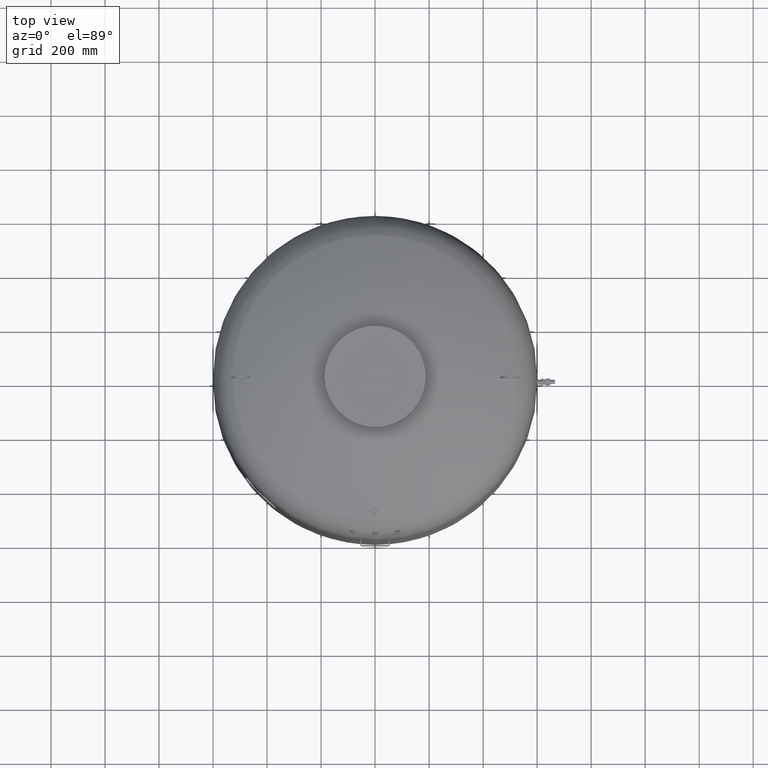
[diagram: clean part render]
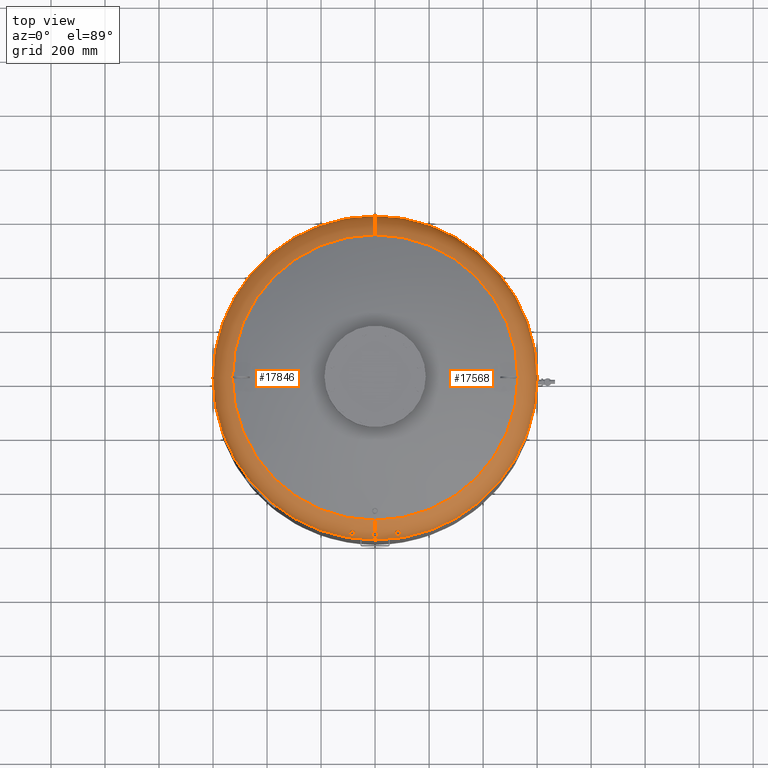
[diagram: same view with one multi-face feature highlighted, each face labeled with its STEP entity id]
A machine part, top view. The highlighted faces form ONE feature: a constant-radius fillet chain: 2 tangent blend faces with common blend radius 127 mm. The faces share edges in the B-rep.
Their STEP definitions:
[1] entity #17846 (Torus):
#16733=CARTESIAN_POINT('',(4.070251E-014,-581.392206755248030,1800.095004337934600));
#16734=VERTEX_POINT('',#16733);
#16750=CARTESIAN_POINT('',(-4.708126E-014,-570.568565249419520,1815.210520603582800));
#16751=VERTEX_POINT('',#16750);
#16758=CARTESIAN_POINT('',(-4.708126E-014,-570.568565249419520,1815.210520603582800));
#16759=CARTESIAN_POINT('',(-1.226193800664040,-570.568565249419630,1815.210520603582800));
#16760=CARTESIAN_POINT('',(-2.440224030761931,-570.722838559517300,1815.021484041693600));
#16761=CARTESIAN_POINT('',(-4.696456483105028,-571.315280350829650,1814.285048031583300));
#16762=CARTESIAN_POINT('',(-5.717181468956783,-571.745930145486910,1813.746562818159000));
#16763=CARTESIAN_POINT('',(-7.348889016405016,-572.763682954573820,1812.446045641367200));
#16764=CARTESIAN_POINT('',(-7.976675843730992,-573.322944622357000,1811.721335507953000));
#16765=CARTESIAN_POINT('',(-8.788540489889847,-574.407826373429540,1810.283103634066300));
#16766=CARTESIAN_POINT('',(-9.033208350713638,-574.910944905941960,1809.605550719006500));
#16767=CARTESIAN_POINT('',(-9.269818253449543,-575.888514548996680,1808.264529096906200));
#16768=CARTESIAN_POINT('',(-9.280056342089647,-576.357732046934190,1807.610257329848300));
#16769=CARTESIAN_POINT('',(-9.085015355485178,-577.325963303350250,1806.237796083592200));
#16770=CARTESIAN_POINT('',(-8.857138817766971,-577.817865573910240,1805.527183592973900));
#16771=CARTESIAN_POINT('',(-8.057446139469484,-578.883475300601960,1803.962418464691200));
#16772=CARTESIAN_POINT('',(-7.407129945179072,-579.426203893210870,1803.145369939497000));
#16773=CARTESIAN_POINT('',(-5.796804700803868,-580.331244134660890,1801.762058210871600));
#16774=CARTESIAN_POINT('',(-4.856513747498868,-580.689946795549870,1801.202311935192900));
#16775=CARTESIAN_POINT('',(-2.759733933541183,-581.206397681135970,1800.391020618060100));
#16776=CARTESIAN_POINT('',(-1.618787187096637,-581.355242397138110,1800.153749112597300));
#16777=CARTESIAN_POINT('',(-0.303381406680882,-581.390196523329790,1800.098199779960900));
#16778=CARTESIAN_POINT('',(-0.151615306289402,-581.392206755248030,1800.095004337934600));
#16779=CARTESIAN_POINT('',(4.070251E-014,-581.392206755248030,1800.095004337934600));
#16780=B_SPLINE_CURVE_WITH_KNOTS('',3,(#16758,#16759,#16760,#16761,#16762,#16763,#16764,#16765,#16766,#16767,#16768,#16769,#16770,#16771,#16772,#16773,#16774,#16775,#16776,#16777,#16778,#16779),.UNSPECIFIED.,.F.,.U.,(4,2,2,2,2,2,2,2,2,2,4),(0.0,3.678581401991979,7.338673258340574,10.643148583621077,13.266211746194269,15.671456589480382,18.338297693247561,21.836157815532140,25.261480459045892,28.756986273979081,29.212938941391993),.UNSPECIFIED.);
#16781=EDGE_CURVE('',#16751,#16734,#16780,.T.);
#17190=CARTESIAN_POINT('',(-80.223172074027190,-575.056327373477760,1801.335244714457500));
#17191=VERTEX_POINT('',#17190);
#17207=CARTESIAN_POINT('',(-85.359990616421925,-564.012452827669340,1815.370250013728100));
#17208=VERTEX_POINT('',#17207);
#17215=CARTESIAN_POINT('',(-85.359990616421925,-564.012452827669340,1815.370250013728100));
#17216=CARTESIAN_POINT('',(-86.467509442209220,-564.117005555310020,1815.048361976583900));
#17217=CARTESIAN_POINT('',(-87.506731109483638,-564.357977141732360,1814.570802959271800));
#17218=CARTESIAN_POINT('',(-89.321282473322213,-565.072107131402390,1813.355975914284000));
#17219=CARTESIAN_POINT('',(-90.084646742936002,-565.534327599336850,1812.634336465598600));
#17220=CARTESIAN_POINT('',(-91.200526578083142,-566.561702591018840,1811.101312814509100));
#17221=CARTESIAN_POINT('',(-91.579901472151420,-567.103389210165460,1810.318371654078400));
#17222=CARTESIAN_POINT('',(-92.007826861911610,-568.234502793233450,1808.718721418350900));
#17223=CARTESIAN_POINT('',(-92.063359853368326,-568.814509609373890,1807.914286381372200));
#17224=CARTESIAN_POINT('',(-91.853228820338089,-570.030116556414550,1806.260720671591300));
#17225=CARTESIAN_POINT('',(-91.559726571309284,-570.657193924743980,1805.426130768650600));
#17226=CARTESIAN_POINT('',(-90.562232671186450,-571.938785422058570,1803.773527893878500));
#17227=CARTESIAN_POINT('',(-89.811329165915708,-572.571132717907860,1802.993031575019800));
#17228=CARTESIAN_POINT('',(-88.009323551087164,-573.638953406377250,1801.775738010628400));
#17229=CARTESIAN_POINT('',(-86.990036695509687,-574.073311186282130,1801.335117188556800));
#17230=CARTESIAN_POINT('',(-84.769352732134863,-574.732336924966940,1800.816129242120700));
#17231=CARTESIAN_POINT('',(-83.588482818424865,-574.948673334115480,1800.746335015583100));
#17232=CARTESIAN_POINT('',(-81.664213969860583,-575.095230495298320,1800.952450911259800));
#17233=CARTESIAN_POINT('',(-80.931282189265417,-575.101103031517820,1801.108280991157200));
#17234=CARTESIAN_POINT('',(-80.223172074027190,-575.056327373477760,1801.335244714457500));
#17235=B_SPLINE_CURVE_WITH_KNOTS('',3,(#17215,#17216,#17217,#17218,#17219,#17220,#17221,#17222,#17223,#17224,#17225,#17226,#17227,#17228,#17229,#17230,#17231,#17232,#17233,#17234),.UNSPECIFIED.,.F.,.U.,(4,2,2,2,2,2,2,2,2,4),(14.306393672591822,17.784414114708078,21.199735200009155,24.254622371122004,27.215820076021632,30.443584904928937,34.166803889951005,37.712082076822533,41.289297907321746,43.535585439877110),.UNSPECIFIED.);
#17236=EDGE_CURVE('',#17208,#17191,#17235,.T.);
#17324=CARTESIAN_POINT('',(-599.999999999999890,3.010780E-014,1733.912457433727700));
#17325=VERTEX_POINT('',#17324);
#17332=CARTESIAN_POINT('',(1.156183E-013,600.0,1733.912457433727700));
#17333=VERTEX_POINT('',#17332);
#17334=CARTESIAN_POINT('',(6.604942E-015,-4.336858E-014,1733.912457433727700));
#17335=DIRECTION('',(0.0,0.0,-1.0));
#17336=DIRECTION('',(1.0,0.0,0.0));
#17337=AXIS2_PLACEMENT_3D('',#17334,#17335,#17336);
#17338=CIRCLE('',#17337,600.0);
#17339=EDGE_CURVE('',#17325,#17333,#17338,.T.);
#17461=CARTESIAN_POINT('',(4.214189E-014,-600.0,1733.912457433727700));
#17462=VERTEX_POINT('',#17461);
#17463=CARTESIAN_POINT('',(4.214189E-014,-472.999999999999940,1733.912457433727700));
#17464=DIRECTION('',(-1.0,0.0,0.0));
#17465=DIRECTION('',(0.0,-1.0,0.0));
#17466=AXIS2_PLACEMENT_3D('',#17463,#17464,#17465);
#17467=CIRCLE('',#17466,127.000000000000010);
#17468=EDGE_CURVE('',#17462,#16734,#17467,.T.);
#17478=CARTESIAN_POINT('',(1.036830E-013,528.621296296296240,1848.084570483805000));
#17479=VERTEX_POINT('',#17478);
#17480=CARTESIAN_POINT('',(1.000658E-013,472.999999999999830,1733.912457433727700));
#17481=DIRECTION('',(1.0,0.0,0.0));
#17482=DIRECTION('',(0.0,1.0,0.0));
#17483=AXIS2_PLACEMENT_3D('',#17480,#17481,#17482);
#17484=CIRCLE('',#17483,127.000000000000010);
#17485=EDGE_CURVE('',#17333,#17479,#17484,.T.);
#17496=CARTESIAN_POINT('',(3.894773E-014,-528.621296296296240,1848.084570483805000));
#17497=VERTEX_POINT('',#17496);
#17505=CARTESIAN_POINT('',(4.214189E-014,-472.999999999999940,1733.912457433727700));
#17506=DIRECTION('',(-1.0,0.0,0.0));
#17507=DIRECTION('',(0.0,-1.0,0.0));
#17508=AXIS2_PLACEMENT_3D('',#17505,#17506,#17507);
#17509=CIRCLE('',#17508,127.000000000000010);
#17510=EDGE_CURVE('',#16751,#17497,#17509,.T.);
#17622=CARTESIAN_POINT('',(3.410787E-015,-2.239550E-014,1848.084570483805000));
#17623=DIRECTION('',(0.0,0.0,-1.0));
#17624=DIRECTION('',(1.0,0.0,0.0));
#17625=AXIS2_PLACEMENT_3D('',#17622,#17623,#17624);
#17626=CIRCLE('',#17625,528.621296296296240);
#17627=EDGE_CURVE('',#17497,#17479,#17626,.T.);
#17789=CARTESIAN_POINT('',(4.214189E-014,-4.336858E-014,1733.912457433727700));
#17790=DIRECTION('',(2.797667E-017,-1.836970E-016,-1.0));
#17791=DIRECTION('',(0.0,-1.0,0.0));
#17792=AXIS2_PLACEMENT_3D('',#17789,#17790,#17791);
#17793=TOROIDAL_SURFACE('',#17792,472.999999999999890,127.000000000000010);
#17794=ORIENTED_EDGE('',*,*,#17468,.T.);
#17795=ORIENTED_EDGE('',*,*,#16781,.F.);
#17796=ORIENTED_EDGE('',*,*,#17510,.T.);
#17797=ORIENTED_EDGE('',*,*,#17627,.T.);
#17798=ORIENTED_EDGE('',*,*,#17485,.F.);
#17799=ORIENTED_EDGE('',*,*,#17339,.F.);
#17800=CARTESIAN_POINT('',(6.604942E-015,-4.336858E-014,1733.912457433727700));
#17801=DIRECTION('',(0.0,0.0,-1.0));
#17802=DIRECTION('',(1.0,0.0,0.0));
#17803=AXIS2_PLACEMENT_3D('',#17800,#17801,#17802);
#17804=CIRCLE('',#17803,600.0);
#17805=EDGE_CURVE('',#17462,#17325,#17804,.T.);
#17806=ORIENTED_EDGE('',*,*,#17805,.F.);
#17807=EDGE_LOOP('',(#17794,#17795,#17796,#17797,#17798,#17799,#17806));
#17808=FACE_OUTER_BOUND('',#17807,.T.);
#17809=CARTESIAN_POINT('',(-74.077941184851781,-568.823124759316670,1811.393553714796300));
#17810=VERTEX_POINT('',#17809);
#17811=CARTESIAN_POINT('',(-74.077941184851809,-568.823124759316560,1811.393553714796300));
#17812=CARTESIAN_POINT('',(-74.423789584662515,-568.127599264810780,1812.231279925901200));
#17813=CARTESIAN_POINT('',(-74.964589351680473,-567.450412137805530,1812.990091772995100));
#17814=CARTESIAN_POINT('',(-76.397104336475024,-566.199597477264210,1814.292439758179600));
#17815=CARTESIAN_POINT('',(-77.281948480097995,-565.639566593161700,1814.820314023565100));
#17816=CARTESIAN_POINT('',(-79.303957384115961,-564.722301177522010,1815.578036046428200));
#17817=CARTESIAN_POINT('',(-80.426661689560561,-564.377625035222080,1815.795460934847100));
#17818=CARTESIAN_POINT('',(-82.789445701042268,-563.961607426362550,1815.882573360154100));
#17819=CARTESIAN_POINT('',(-84.008925354268499,-563.902430947393210,1815.741376588627600));
#17820=CARTESIAN_POINT('',(-85.239805030005186,-564.001525667967260,1815.404665196019300));
#17821=CARTESIAN_POINT('',(-85.299998054115250,-564.006789369964390,1815.387686185172200));
#17822=CARTESIAN_POINT('',(-85.359990616421925,-564.012452827669340,1815.370250013728100));
#17823=B_SPLINE_CURVE_WITH_KNOTS('',3,(#17811,#17812,#17813,#17814,#17815,#17816,#17817,#17818,#17819,#17820,#17821,#17822),.UNSPECIFIED.,.F.,.U.,(4,2,2,2,2,4),(0.0,3.427297522156869,6.915215145807981,10.466077362229157,14.117994745892375,14.306393672591822),.UNSPECIFIED.);
#17824=EDGE_CURVE('',#17810,#17208,#17823,.T.);
#17825=ORIENTED_EDGE('',*,*,#17824,.F.);
#17826=CARTESIAN_POINT('',(-80.223172074027190,-575.056327373477760,1801.335244714457500));
#17827=CARTESIAN_POINT('',(-79.780929008165060,-575.028363185618450,1801.476992630031400));
#17828=CARTESIAN_POINT('',(-79.348365074454591,-574.980630391679370,1801.646475624076200));
#17829=CARTESIAN_POINT('',(-77.830427390954213,-574.735749024199780,1802.355843742363500));
#17830=CARTESIAN_POINT('',(-76.846518123332842,-574.425501590783480,1803.040166982119000));
#17831=CARTESIAN_POINT('',(-75.286275178769316,-573.600537745929960,1804.590361640322000));
#17832=CARTESIAN_POINT('',(-74.695028381325713,-573.111479336445880,1805.423774403595200));
#17833=CARTESIAN_POINT('',(-73.920848122269433,-572.044318383565720,1807.092775988573100));
#17834=CARTESIAN_POINT('',(-73.705937820722582,-571.487848694694210,1807.908274905182000));
#17835=CARTESIAN_POINT('',(-73.594221894892797,-570.312878245318980,1809.526622459512100));
#17836=CARTESIAN_POINT('',(-73.696767828620466,-569.702175679769770,1810.319160780906300));
#17837=CARTESIAN_POINT('',(-73.992340576230774,-569.002052728992680,1811.177110493272000));
#17838=CARTESIAN_POINT('',(-74.033503119506378,-568.912492839062570,1811.285914263143200));
#17839=CARTESIAN_POINT('',(-74.077941184851809,-568.823124759316670,1811.393553714796300));
#17840=B_SPLINE_CURVE_WITH_KNOTS('',3,(#17826,#17827,#17828,#17829,#17830,#17831,#17832,#17833,#17834,#17835,#17836,#17837,#17838,#17839),.UNSPECIFIED.,.F.,.U.,(4,2,2,2,2,2,4),(43.535585439877110,44.938481774539703,48.616409687105005,51.986260428521710,54.997178532547181,57.995193450677441,58.435566953435341),.UNSPECIFIED.);
#17841=EDGE_CURVE('',#17191,#17810,#17840,.T.);
#17842=ORIENTED_EDGE('',*,*,#17841,.F.);
#17843=ORIENTED_EDGE('',*,*,#17236,.F.);
#17844=EDGE_LOOP('',(#17825,#17842,#17843));
#17845=FACE_BOUND('',#17844,.T.);
#17846=ADVANCED_FACE('',(#17808,#17845),#17793,.T.);
[2] entity #17568 (Torus):
#16733=CARTESIAN_POINT('',(4.070251E-014,-581.392206755248030,1800.095004337934600));
#16734=VERTEX_POINT('',#16733);
#16750=CARTESIAN_POINT('',(-4.708126E-014,-570.568565249419520,1815.210520603582800));
#16751=VERTEX_POINT('',#16750);
#16930=CARTESIAN_POINT('',(80.223172074027133,-575.056327373477760,1801.335244714457500));
#16931=VERTEX_POINT('',#16930);
#16947=CARTESIAN_POINT('',(85.359990616421896,-564.012452827669340,1815.370250013727900));
#16948=VERTEX_POINT('',#16947);
#16955=CARTESIAN_POINT('',(82.009292261585088,-564.105222987667050,1815.846292839197300));
#16956=VERTEX_POINT('',#16955);
#16957=CARTESIAN_POINT('',(85.359990616421896,-564.012452827669340,1815.370250013727900));
#16958=CARTESIAN_POINT('',(84.920089566502156,-563.970924996638130,1815.498102364585700));
#16959=CARTESIAN_POINT('',(84.471191566060796,-563.951066197114070,1815.600862840021400));
#16960=CARTESIAN_POINT('',(83.351010887361198,-563.956621340505880,1815.790506757055900));
#16961=CARTESIAN_POINT('',(82.677718174702989,-564.007488409072720,1815.846948222621000));
#16962=CARTESIAN_POINT('',(82.009292261585088,-564.105222987667050,1815.846292839197300));
#16963=B_SPLINE_CURVE_WITH_KNOTS('',3,(#16957,#16958,#16959,#16960,#16961,#16962),.UNSPECIFIED.,.F.,.U.,(4,2,4),(55.013308857986530,56.395131241260138,58.421732116709315),.UNSPECIFIED.);
#16964=EDGE_CURVE('',#16948,#16956,#16963,.T.);
#16966=CARTESIAN_POINT('',(82.009292261585088,-564.105222987667050,1815.846292839197300));
#16967=CARTESIAN_POINT('',(80.800452631888035,-564.281974710599910,1815.845107586741100));
#16968=CARTESIAN_POINT('',(79.625994071250048,-564.609594186000210,1815.657432784025800));
#16969=CARTESIAN_POINT('',(77.477529422961481,-565.524878730347500,1814.925709264065700));
#16970=CARTESIAN_POINT('',(76.525491124374739,-566.104031617775150,1814.387647265080200));
#16971=CARTESIAN_POINT('',(75.042807573385517,-567.368487621646300,1813.078931089545400));
#16972=CARTESIAN_POINT('',(74.495726795412509,-568.029763143529640,1812.342697559602100));
#16973=CARTESIAN_POINT('',(73.809943909668490,-569.326554150790800,1810.792068158149300));
#16974=CARTESIAN_POINT('',(73.641392688520995,-569.949374712815940,1810.002794019664000));
#16975=CARTESIAN_POINT('',(73.629503782382855,-571.145857170414840,1808.392477457864500));
#16976=CARTESIAN_POINT('',(73.780074496893548,-571.712588735823370,1807.582600101744700));
#16977=CARTESIAN_POINT('',(74.411536722822660,-572.803614790363100,1805.922748701691500));
#16978=CARTESIAN_POINT('',(74.918740899211585,-573.310251273151270,1805.088922158420700));
#16979=CARTESIAN_POINT('',(76.327223303988831,-574.209067763817530,1803.475378742995000));
#16980=CARTESIAN_POINT('',(77.257742859601734,-574.569650395403870,1802.732026789953800));
#16981=CARTESIAN_POINT('',(78.922658146483087,-574.928449642559830,1801.821181290450600));
#16982=CARTESIAN_POINT('',(79.561261313843886,-575.014473021713570,1801.547400602914400));
#16983=CARTESIAN_POINT('',(80.223172074027133,-575.056327373477760,1801.335244714457500));
#16984=B_SPLINE_CURVE_WITH_KNOTS('',3,(#16966,#16967,#16968,#16969,#16970,#16971,#16972,#16973,#16974,#16975,#16976,#16977,#16978,#16979,#16980,#16981,#16982,#16983),.UNSPECIFIED.,.F.,.U.,(4,2,2,2,2,2,2,2,4),(0.0,3.665081505285111,7.341674748598241,10.706774787927273,13.744795045633090,16.724617199328740,19.996918627979468,23.692625549848572,25.791463465580243),.UNSPECIFIED.);
#16985=EDGE_CURVE('',#16956,#16931,#16984,.T.);
#17307=CARTESIAN_POINT('',(600.0,-4.336858E-014,1733.912457433727700));
#17308=VERTEX_POINT('',#17307);
#17332=CARTESIAN_POINT('',(1.156183E-013,600.0,1733.912457433727700));
#17333=VERTEX_POINT('',#17332);
#17341=CARTESIAN_POINT('',(6.604942E-015,-4.336858E-014,1733.912457433727700));
#17342=DIRECTION('',(0.0,0.0,-1.0));
#17343=DIRECTION('',(1.0,0.0,0.0));
#17344=AXIS2_PLACEMENT_3D('',#17341,#17342,#17343);
#17345=CIRCLE('',#17344,600.0);
#17346=EDGE_CURVE('',#17333,#17308,#17345,.T.);
#17456=CARTESIAN_POINT('',(4.214189E-014,-4.336858E-014,1733.912457433727700));
#17457=DIRECTION('',(2.797667E-017,-1.836970E-016,-1.0));
#17458=DIRECTION('',(0.0,-1.0,0.0));
#17459=AXIS2_PLACEMENT_3D('',#17456,#17457,#17458);
#17460=TOROIDAL_SURFACE('',#17459,472.999999999999890,127.000000000000010);
#17461=CARTESIAN_POINT('',(4.214189E-014,-600.0,1733.912457433727700));
#17462=VERTEX_POINT('',#17461);
#17463=CARTESIAN_POINT('',(4.214189E-014,-472.999999999999940,1733.912457433727700));
#17464=DIRECTION('',(-1.0,0.0,0.0));
#17465=DIRECTION('',(0.0,-1.0,0.0));
#17466=AXIS2_PLACEMENT_3D('',#17463,#17464,#17465);
#17467=CIRCLE('',#17466,127.000000000000010);
#17468=EDGE_CURVE('',#17462,#16734,#17467,.T.);
#17469=ORIENTED_EDGE('',*,*,#17468,.F.);
#17470=CARTESIAN_POINT('',(6.604942E-015,-4.336858E-014,1733.912457433727700));
#17471=DIRECTION('',(0.0,0.0,-1.0));
#17472=DIRECTION('',(1.0,0.0,0.0));
#17473=AXIS2_PLACEMENT_3D('',#17470,#17471,#17472);
#17474=CIRCLE('',#17473,600.0);
#17475=EDGE_CURVE('',#17308,#17462,#17474,.T.);
#17476=ORIENTED_EDGE('',*,*,#17475,.F.);
#17477=ORIENTED_EDGE('',*,*,#17346,.F.);
#17478=CARTESIAN_POINT('',(1.036830E-013,528.621296296296240,1848.084570483805000));
#17479=VERTEX_POINT('',#17478);
#17480=CARTESIAN_POINT('',(1.000658E-013,472.999999999999830,1733.912457433727700));
#17481=DIRECTION('',(1.0,0.0,0.0));
#17482=DIRECTION('',(0.0,1.0,0.0));
#17483=AXIS2_PLACEMENT_3D('',#17480,#17481,#17482);
#17484=CIRCLE('',#17483,127.000000000000010);
#17485=EDGE_CURVE('',#17333,#17479,#17484,.T.);
#17486=ORIENTED_EDGE('',*,*,#17485,.T.);
#17487=CARTESIAN_POINT('',(528.621296296296240,-2.239550E-014,1848.084570483805000));
#17488=VERTEX_POINT('',#17487);
#17489=CARTESIAN_POINT('',(3.410787E-015,-2.239550E-014,1848.084570483805000));
#17490=DIRECTION('',(0.0,0.0,-1.0));
#17491=DIRECTION('',(1.0,0.0,0.0));
#17492=AXIS2_PLACEMENT_3D('',#17489,#17490,#17491);
#17493=CIRCLE('',#17492,528.621296296296240);
#17494=EDGE_CURVE('',#17479,#17488,#17493,.T.);
#17495=ORIENTED_EDGE('',*,*,#17494,.T.);
#17496=CARTESIAN_POINT('',(3.894773E-014,-528.621296296296240,1848.084570483805000));
#17497=VERTEX_POINT('',#17496);
#17498=CARTESIAN_POINT('',(3.410787E-015,-2.239550E-014,1848.084570483805000));
#17499=DIRECTION('',(0.0,0.0,-1.0));
#17500=DIRECTION('',(1.0,0.0,0.0));
#17501=AXIS2_PLACEMENT_3D('',#17498,#17499,#17500);
#17502=CIRCLE('',#17501,528.621296296296240);
#17503=EDGE_CURVE('',#17488,#17497,#17502,.T.);
#17504=ORIENTED_EDGE('',*,*,#17503,.T.);
#17505=CARTESIAN_POINT('',(4.214189E-014,-472.999999999999940,1733.912457433727700));
#17506=DIRECTION('',(-1.0,0.0,0.0));
#17507=DIRECTION('',(0.0,-1.0,0.0));
#17508=AXIS2_PLACEMENT_3D('',#17505,#17506,#17507);
#17509=CIRCLE('',#17508,127.000000000000010);
#17510=EDGE_CURVE('',#16751,#17497,#17509,.T.);
#17511=ORIENTED_EDGE('',*,*,#17510,.F.);
#17512=CARTESIAN_POINT('',(4.070251E-014,-581.392206755248030,1800.095004337934600));
#17513=CARTESIAN_POINT('',(1.049135398505305,-581.392206755248030,1800.095004337934600));
#17514=CARTESIAN_POINT('',(2.091050416020754,-581.296187055613470,1800.248177235453100));
#17515=CARTESIAN_POINT('',(4.232533130706272,-580.886185335293480,1800.894971371483700));
#17516=CARTESIAN_POINT('',(5.289902262042863,-580.543808635783420,1801.432583409372200));
#17517=CARTESIAN_POINT('',(7.073608419265530,-579.657581890789170,1802.794458782106600));
#17518=CARTESIAN_POINT('',(7.792129244131064,-579.127020352400560,1803.598293673625000));
#17519=CARTESIAN_POINT('',(8.712105821969882,-578.063087887566330,1805.170144327081100));
#17520=CARTESIAN_POINT('',(8.989384521153607,-577.563250034520480,1805.896612659168100));
#17521=CARTESIAN_POINT('',(9.260253181349741,-576.585246075215200,1807.290382674015700));
#17522=CARTESIAN_POINT('',(9.283714127357488,-576.116040854578390,1807.948224925462900));
#17523=CARTESIAN_POINT('',(9.117885482811207,-575.148466541514950,1809.282487674240000));
#17524=CARTESIAN_POINT('',(8.916993759582104,-574.654575326084000,1809.951438670523700));
#17525=CARTESIAN_POINT('',(8.209598462911924,-573.574637971331300,1811.391290147214000));
#17526=CARTESIAN_POINT('',(7.640617860804367,-573.008497149964910,1812.129229930127200));
#17527=CARTESIAN_POINT('',(6.179498730488137,-571.993547010660340,1813.432765538049400));
#17528=CARTESIAN_POINT('',(5.288437349604227,-571.558862602890710,1813.979768990156600));
#17529=CARTESIAN_POINT('',(3.623883006108815,-571.013026207121470,1814.661419317152200));
#17530=CARTESIAN_POINT('',(2.913316885185672,-570.844679406621030,1814.869784878464500));
#17531=CARTESIAN_POINT('',(1.464963205591322,-570.623717045028120,1815.142747980694800));
#17532=CARTESIAN_POINT('',(0.733781008385985,-570.568565249419630,1815.210520603582800));
#17533=CARTESIAN_POINT('',(-4.708126E-014,-570.568565249419630,1815.210520603582800));
#17534=B_SPLINE_CURVE_WITH_KNOTS('',3,(#17512,#17513,#17514,#17515,#17516,#17517,#17518,#17519,#17520,#17521,#17522,#17523,#17524,#17525,#17526,#17527,#17528,#17529,#17530,#17531,#17532,#17533),.UNSPECIFIED.,.F.,.U.,(4,2,2,2,2,2,2,2,2,2,4),(29.212938941391993,32.368003526444987,36.036255918751920,39.606385656065207,42.363382763940862,44.777948976665328,47.332232548795965,50.579004257411995,53.948528424196276,56.218159804628229,58.419502829786325),.UNSPECIFIED.);
#17535=EDGE_CURVE('',#16734,#16751,#17534,.T.);
#17536=ORIENTED_EDGE('',*,*,#17535,.F.);
#17537=EDGE_LOOP('',(#17469,#17476,#17477,#17486,#17495,#17504,#17511,#17536));
#17538=FACE_OUTER_BOUND('',#17537,.T.);
#17539=ORIENTED_EDGE('',*,*,#16985,.F.);
#17540=ORIENTED_EDGE('',*,*,#16964,.F.);
#17541=CARTESIAN_POINT('',(80.223172074027133,-575.056327373477760,1801.335244714457500));
#17542=CARTESIAN_POINT('',(80.670667529582104,-575.084623683700100,1801.191813300942800));
#17543=CARTESIAN_POINT('',(81.128814409506802,-575.092726986161550,1801.076542278544600));
#17544=CARTESIAN_POINT('',(82.762925442859853,-575.049621094768330,1800.776111009491400));
#17545=CARTESIAN_POINT('',(83.951516570830606,-574.891008521235110,1800.754061806116600));
#17546=CARTESIAN_POINT('',(86.272223623677235,-574.328608371798960,1801.102374465498100));
#17547=CARTESIAN_POINT('',(87.376873992159858,-573.923697629215330,1801.480458018888200));
#17548=CARTESIAN_POINT('',(89.325190903422765,-572.909622512233230,1802.590659866585800));
#17549=CARTESIAN_POINT('',(90.146898486115660,-572.307998489119880,1803.315388591747500));
#17550=CARTESIAN_POINT('',(91.314742399069644,-571.049029732620280,1804.912369163938800));
#17551=CARTESIAN_POINT('',(91.693005130487165,-570.413093711422790,1805.749518161642800));
#17552=CARTESIAN_POINT('',(92.045862424127549,-569.177861980137440,1807.415302487939900));
#17553=CARTESIAN_POINT('',(92.055346935752681,-568.588941150452110,1808.225954424258600));
#17554=CARTESIAN_POINT('',(91.755266691593050,-567.442596697226350,1809.834052941505400));
#17555=CARTESIAN_POINT('',(91.445670827753631,-566.893077593207180,1810.620626921028400));
#17556=CARTESIAN_POINT('',(90.471396597983059,-565.825893176520140,1812.190903425972200));
#17557=CARTESIAN_POINT('',(89.774422245962597,-565.331182748662170,1812.947085163533500));
#17558=CARTESIAN_POINT('',(88.071046961439592,-564.534624901676580,1814.252454485898400));
#17559=CARTESIAN_POINT('',(87.073688823663971,-564.244796623043160,1814.784937215187300));
#17560=CARTESIAN_POINT('',(85.784222810709636,-564.057788086257460,1815.240444180635000));
#17561=CARTESIAN_POINT('',(85.573163175583161,-564.032576885156690,1815.308293778724200));
#17562=CARTESIAN_POINT('',(85.359990616421896,-564.012452827669340,1815.370250013727900));
#17563=B_SPLINE_CURVE_WITH_KNOTS('',3,(#17541,#17542,#17543,#17544,#17545,#17546,#17547,#17548,#17549,#17550,#17551,#17552,#17553,#17554,#17555,#17556,#17557,#17558,#17559,#17560,#17561,#17562),.UNSPECIFIED.,.F.,.U.,(4,2,2,2,2,2,2,2,2,2,4),(25.791463465580243,27.210416722929281,30.778013921886611,34.450160569566002,38.160992128060776,41.484474612597552,44.470885931146896,47.476342496791254,50.872408537250827,54.343688692718473,55.013308857986530),.UNSPECIFIED.);
#17564=EDGE_CURVE('',#16931,#16948,#17563,.T.);
#17565=ORIENTED_EDGE('',*,*,#17564,.F.);
#17566=EDGE_LOOP('',(#17539,#17540,#17565));
#17567=FACE_BOUND('',#17566,.T.);
#17568=ADVANCED_FACE('',(#17538,#17567),#17460,.T.);